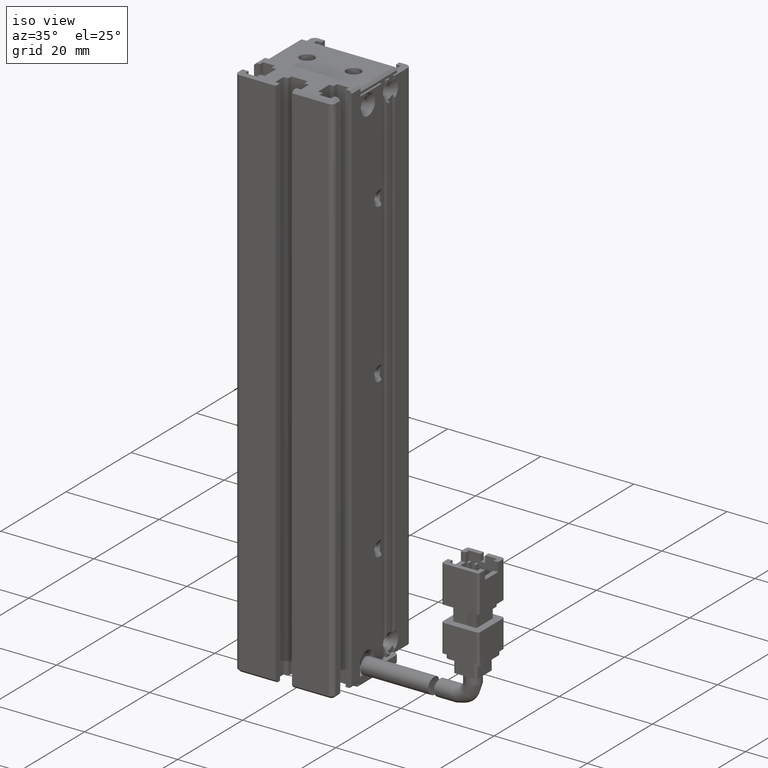
[diagram: clean part render]
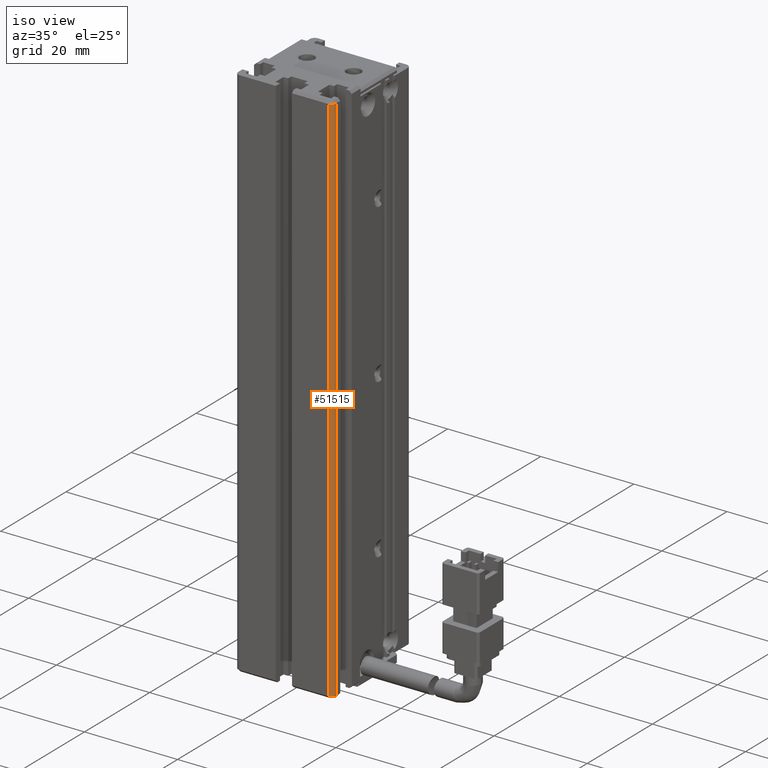
[diagram: same view with one face highlighted and labeled with its STEP entity id]
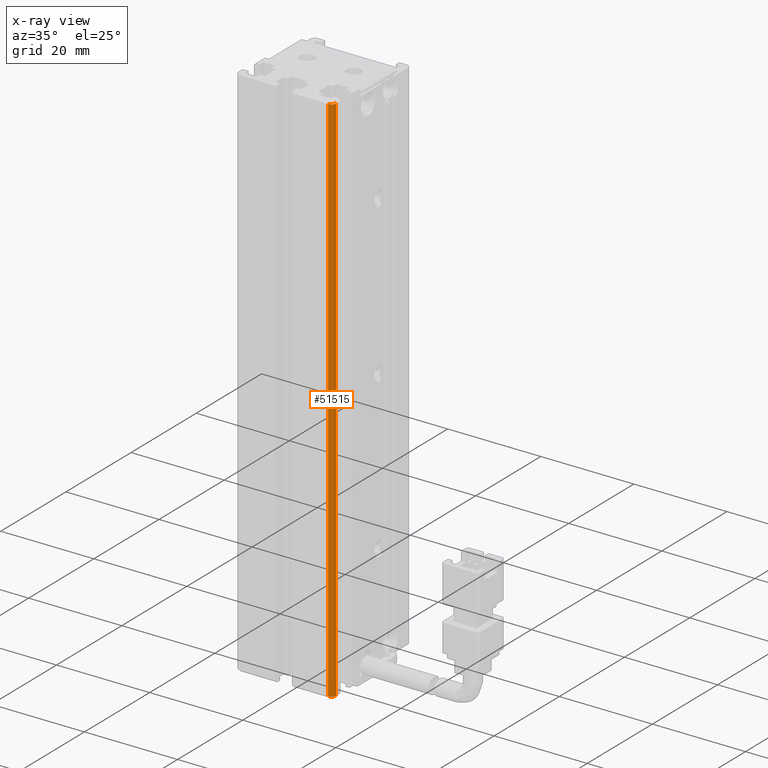
[diagram: x-ray of the same camera — body ghosted, the highlighted face saturated]
A machine part, iso view. The second image highlights one B-rep face of the part: STEP entity #51515.
The next image is the same camera in x-ray: the body ghosted, the highlighted face saturated — about 0% of this face is hidden behind the body in this view.
In plain terms, the highlighted cylindrical surface (edge-blend (fillet) strip) has radius 1 mm, axis along (-0, -0, -1).
Its self-contained STEP definition (entity closure, byte-faithful):
#3422 = CARTESIAN_POINT ( 'NONE',  ( 51.82661489659529500, 11.74432492616542100, -56.50634592792314900 ) ) ;
#7232 = AXIS2_PLACEMENT_3D ( 'NONE', #43314, #32965, #72082 ) ;
#8689 = VERTEX_POINT ( 'NONE', #28996 ) ;
#10444 = DIRECTION ( 'NONE',  ( -0.0000000000000000000, -0.0000000000000000000, -1.000000000000000000 ) ) ;
#12722 = CYLINDRICAL_SURFACE ( 'NONE', #54689, 1.000000000000000900 ) ;
#13554 = LINE ( 'NONE', #37000, #68782 ) ;
#14970 = ORIENTED_EDGE ( 'NONE', *, *, #41780, .T. ) ;
#17583 = DIRECTION ( 'NONE',  ( 0.0000000000000000000, 0.0000000000000000000, 1.000000000000000000 ) ) ;
#19781 = FACE_OUTER_BOUND ( 'NONE', #44345, .T. ) ;
#21672 = ORIENTED_EDGE ( 'NONE', *, *, #47077, .T. ) ;
#22799 = VERTEX_POINT ( 'NONE', #67910 ) ;
#24350 = ORIENTED_EDGE ( 'NONE', *, *, #52942, .T. ) ;
#25650 = CARTESIAN_POINT ( 'NONE',  ( 50.82661489659529500, 11.74432492616542100, -56.00634592792313500 ) ) ;
#26638 = CARTESIAN_POINT ( 'NONE',  ( 50.82661489659529500, 11.74432492616542100, -56.50634592792314900 ) ) ;
#28996 = CARTESIAN_POINT ( 'NONE',  ( 50.82661489659529500, 10.74432492616542200, -56.50634592792314900 ) ) ;
#32965 = DIRECTION ( 'NONE',  ( 0.0000000000000000000, 0.0000000000000000000, 1.000000000000000000 ) ) ;
#35210 = VERTEX_POINT ( 'NONE', #3422 ) ;
#37000 = CARTESIAN_POINT ( 'NONE',  ( 50.82661489659529500, 10.74432492616542200, -56.00634592792313500 ) ) ;
#37874 = ORIENTED_EDGE ( 'NONE', *, *, #51531, .T. ) ;
#41780 = EDGE_CURVE ( 'NONE', #22799, #72076, #59216, .T. ) ;
#42596 = AXIS2_PLACEMENT_3D ( 'NONE', #26638, #10444, #49021 ) ;
#43069 = LINE ( 'NONE', #57582, #71910 ) ;
#43314 = CARTESIAN_POINT ( 'NONE',  ( 50.82661489659529500, 11.74432492616542100, -171.5063459279231200 ) ) ;
#44345 = EDGE_LOOP ( 'NONE', ( #37874, #14970, #24350, #21672 ) ) ;
#47077 = EDGE_CURVE ( 'NONE', #35210, #8689, #52945, .T. ) ;
#49021 = DIRECTION ( 'NONE',  ( -1.000000000000000000, 0.0000000000000000000, 0.0000000000000000000 ) ) ;
#51515 = ADVANCED_FACE ( 'NONE', ( #19781 ), #12722, .T. ) ;
#51531 = EDGE_CURVE ( 'NONE', #8689, #22799, #13554, .T. ) ;
#52942 = EDGE_CURVE ( 'NONE', #72076, #35210, #43069, .T. ) ;
#52945 = CIRCLE ( 'NONE', #42596, 1.000000000000000900 ) ;
#54370 = DIRECTION ( 'NONE',  ( -0.0000000000000000000, -0.0000000000000000000, -1.000000000000000000 ) ) ;
#54689 = AXIS2_PLACEMENT_3D ( 'NONE', #25650, #54370, #59015 ) ;
#57458 = CARTESIAN_POINT ( 'NONE',  ( 51.82661489659530200, 11.74432492616542100, -171.5063459279231200 ) ) ;
#57582 = CARTESIAN_POINT ( 'NONE',  ( 51.82661489659529500, 11.74432492616542100, -56.00634592792313500 ) ) ;
#59015 = DIRECTION ( 'NONE',  ( -1.000000000000000000, 0.0000000000000000000, 0.0000000000000000000 ) ) ;
#59216 = CIRCLE ( 'NONE', #7232, 1.000000000000000900 ) ;
#60910 = DIRECTION ( 'NONE',  ( -0.0000000000000000000, 0.0000000000000000000, -1.000000000000000000 ) ) ;
#67910 = CARTESIAN_POINT ( 'NONE',  ( 50.82661489659529500, 10.74432492617695100, -171.5063459279242900 ) ) ;
#68782 = VECTOR ( 'NONE', #60910, 1000.000000000000000 ) ;
#71910 = VECTOR ( 'NONE', #17583, 1000.000000000000000 ) ;
#72076 = VERTEX_POINT ( 'NONE', #57458 ) ;
#72082 = DIRECTION ( 'NONE',  ( -1.000000000000000000, 0.0000000000000000000, 0.0000000000000000000 ) ) ;